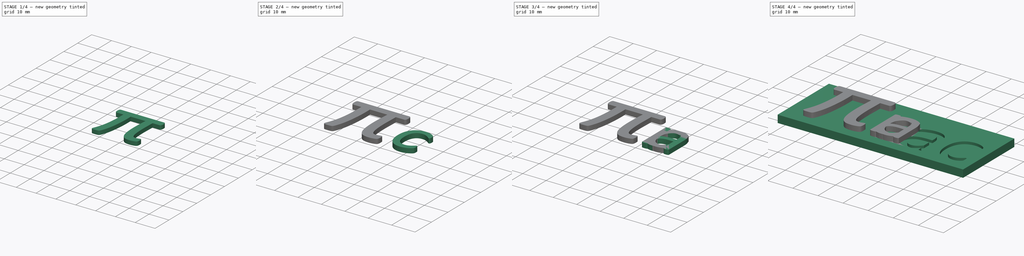
[diagram: build sequence overview — one tinted view per stage of 4, left to right]
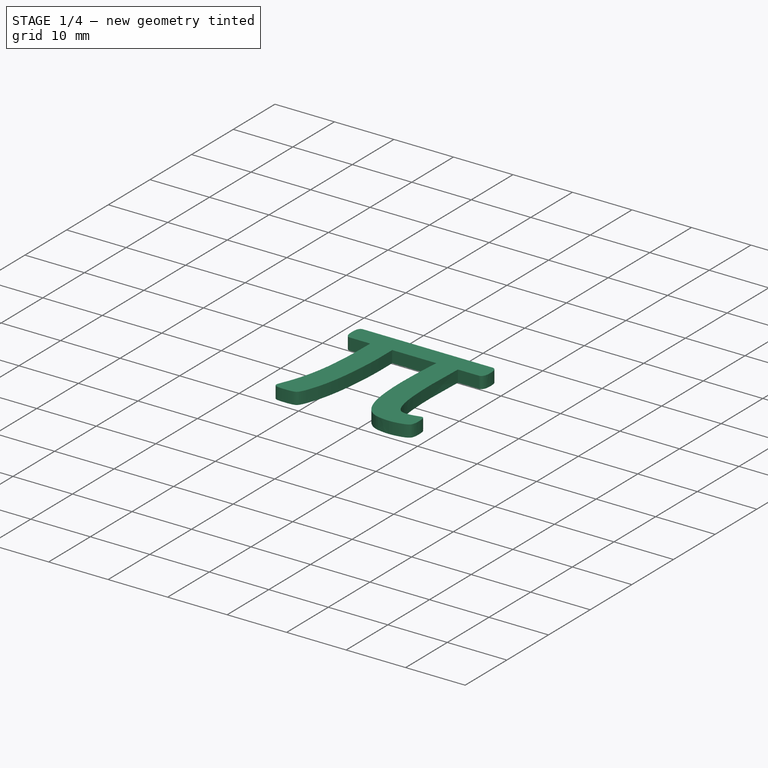
[diagram: stage 1 of 4 — iso view after this stage's code; geometry added in this stage tinted green]
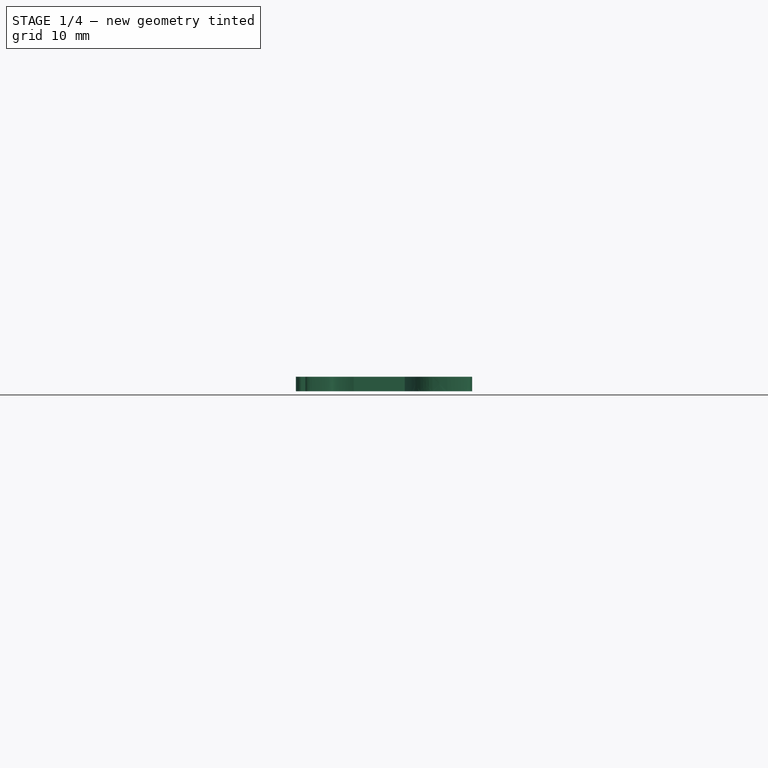
[diagram: stage 1 of 4 — front view after this stage's code; geometry added in this stage tinted green]
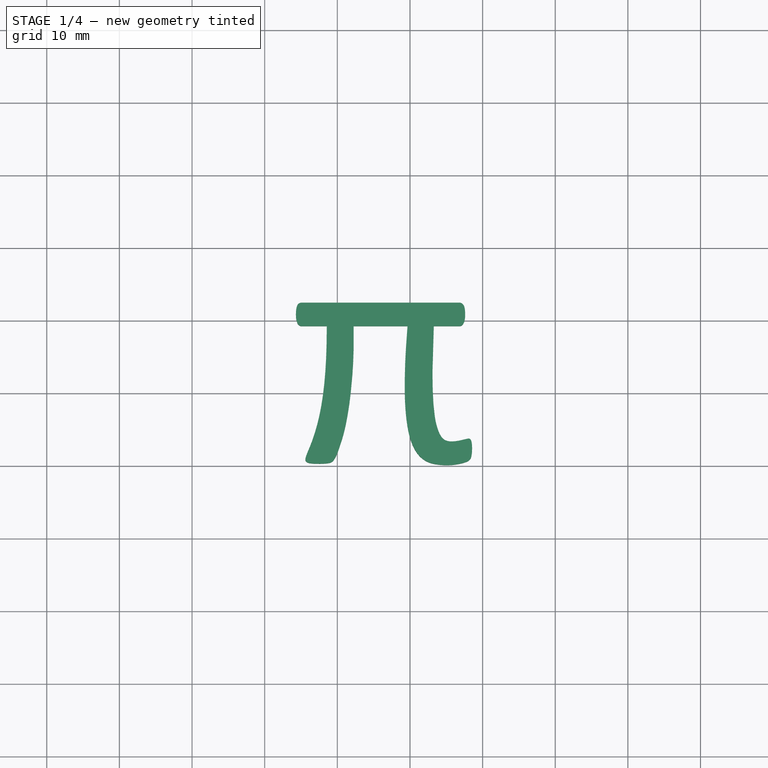
[diagram: stage 1 of 4 — top view after this stage's code; geometry added in this stage tinted green]
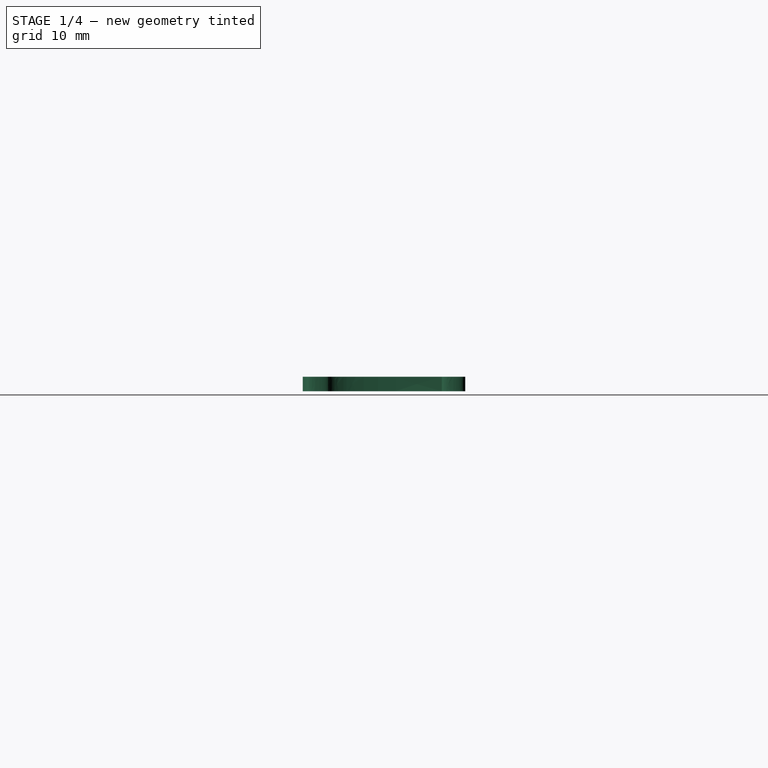
[diagram: stage 1 of 4 — right view after this stage's code; geometry added in this stage tinted green]
FCSTD DOCUMENT  (FreeCAD 1.0R39109 (Git))
Label: PiTrac Logo
License: All rights reserved
LicenseURL: http://en.wikipedia.org/wiki/All_rights_reserved
objects: Part::Part2DObjectPython×7, PartDesign::Pad×6, PartDesign::Body×6, PartDesign::Pocket×5, Sketcher::SketchObject×4, App::Part×2
note: 54 computed .brp shape members not serialized (recipe doc carries the construction recipe); baked Part::Feature solids carry a one-line shape summary decoded from their .brp

FEATURE [PartDesign::Body] Body  label="Logo - Back Plate Body"
  AllowCompound = false
  Group = -> [Sketch,Pad,ShapeString,ShapeString001,Pocket,Pocket001]
  Origin = -> Origin001
  Placement = pos=(0,28.3,0) rot=(0,0,1;0rad)
  Tip = -> Pocket001
FEATURE [App::Part] Part  label="Logo - Back Plate Object"
  Group = -> [Body]
  Origin = -> Origin
FEATURE [Part::Part2DObjectPython] ShapeString002  label="Pi Shape String"  # Draft 2D object (typed FeaturePython)
  FontFile = <path>
  Fuse = false
  Justification = 6
  JustificationReference = 0
  KeepLeftMargin = false
  MakeFace = true
  ObliqueAngle = 0
  Placement = pos=(-25.7,0.43,0) rot=(0,0,1;0rad)
  ScaleToSize = true
  Size = 30
  String = π
  Tracking = 0
FEATURE [PartDesign::Pad] Pad001  label="Pi Pad"
  Direction = (0,0,1)
  Length = 2
  Length2 = 10
  Placement = pos=(-25.7,0.43,0) rot=(0,0,1;0rad)
  Profile = -> ShapeString002
  ReferenceAxis = -> ShapeString002 [N_Axis]
  Suppressed = false
  Type = 0
FEATURE [PartDesign::Body] Body004  label="c Body"
  AllowCompound = false
  Group = -> [ShapeString005,Pad004]
  Origin = -> Origin005
  Placement = pos=(26.6,0,0) rot=(0,0,1;0rad)
  Tip = -> Pad004
FEATURE [Part::Part2DObjectPython] ShapeString006  label="Pi Shape String001"  # Draft 2D object (typed FeaturePython)
  FontFile = <path>
  Fuse = false
  Justification = 6
  JustificationReference = 0
  KeepLeftMargin = false
  MakeFace = true
  ObliqueAngle = 0
  Placement = pos=(-25.7,0.43,0) rot=(0,0,1;0rad)
  ScaleToSize = true
  Size = 30
  String = π
  Tracking = 0
FEATURE [PartDesign::Pad] Pad005  label="Pi Stem Pad"
  Direction = (0,0,1)
  Length = 2
  Length2 = 10
  Placement = pos=(-25.7,0.43,0) rot=(0,0,1;0rad)
  Profile = -> ShapeString006
  ReferenceAxis = -> ShapeString006 [N_Axis]
  Suppressed = false
  Type = 0
FEATURE [PartDesign::Body] Body005  label="Pi Stem Body"
  AllowCompound = false
  Group = -> [ShapeString006,Pad005,Sketch001,Pocket002,Sketch002,Pocket003]
  Origin = -> Origin006
  Placement = pos=(66.6,0,0) rot=(0,0,1;0rad)
  Tip = -> Pocket003
FEATURE [Sketcher::SketchObject] Sketch003
  ArcFitTolerance = 1e-06
  AttachmentSupport = -> [XY_Plane002]
  FullyConstrained = false
  MakeInternals = false
  MapMode = 5
  sketch-geometry (4):
    g0: LineSegment StartX=-26.0144 StartY=19.2461 StartZ=0 EndX=-26.0144 EndY=0 EndZ=0
    g1: LineSegment StartX=-26.0144 StartY=0 StartZ=0 EndX=-16.3567 EndY=0 EndZ=0
    g2: LineSegment StartX=-16.3567 StartY=0 StartZ=0 EndX=-16.3567 EndY=19.2461 EndZ=0
    g3: LineSegment StartX=-16.3567 StartY=19.2461 StartZ=0 EndX=-26.0144 EndY=19.2461 EndZ=0
  constraints (9):
    c: Coincident(g0,g1)
    c: Coincident(g1,g2)
    c: Coincident(g2,g3)
    c: Coincident(g3,g0)
    c: Vertical(g0)
    c: Vertical(g2)
    c: Horizontal(g1)
    c: Horizontal(g3)
    c: PointOnObject(g1,g-1)
FEATURE [PartDesign::Pocket] Pocket004  label="Stem Removal Pocket"
  BaseFeature = -> Pad001
  Direction = (0,0,-1)
  Length = 5
  Length2 = 5
  Placement = pos=(-25.7,0.43,0) rot=(0,0,1;0rad)
  Profile = -> Sketch003
  ReferenceAxis = -> Sketch003 [N_Axis]
  Reversed = true
  Suppressed = false
  Type = 0
FEATURE [PartDesign::Body] Body001  label="Pi Character"
  AllowCompound = false
  Group = -> [ShapeString002,Pad001,Sketch003,Pocket004]
  Origin = -> Origin002
  Tip = -> Pocket004
FEATURE [App::Part] Part001  label="Individual Characters Body"
  Group = -> [Body002,Body003,Body001,Body005,Body004]
  Origin = -> Origin007
note: 7 file-system paths scrubbed to <path> (originals preserved in the JSON sidecar)
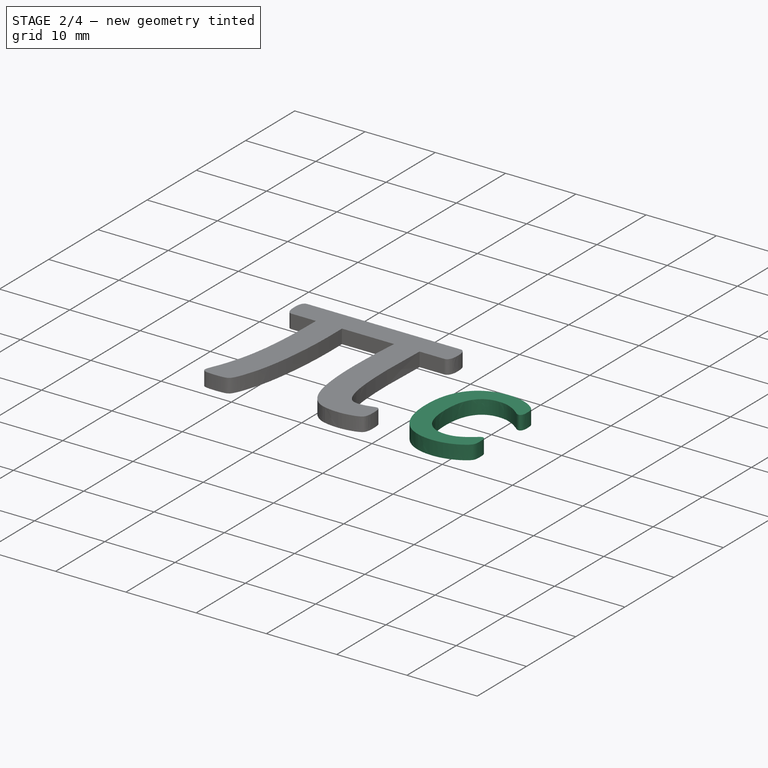
[diagram: stage 2 of 4 — iso view after this stage's code; geometry added in this stage tinted green]
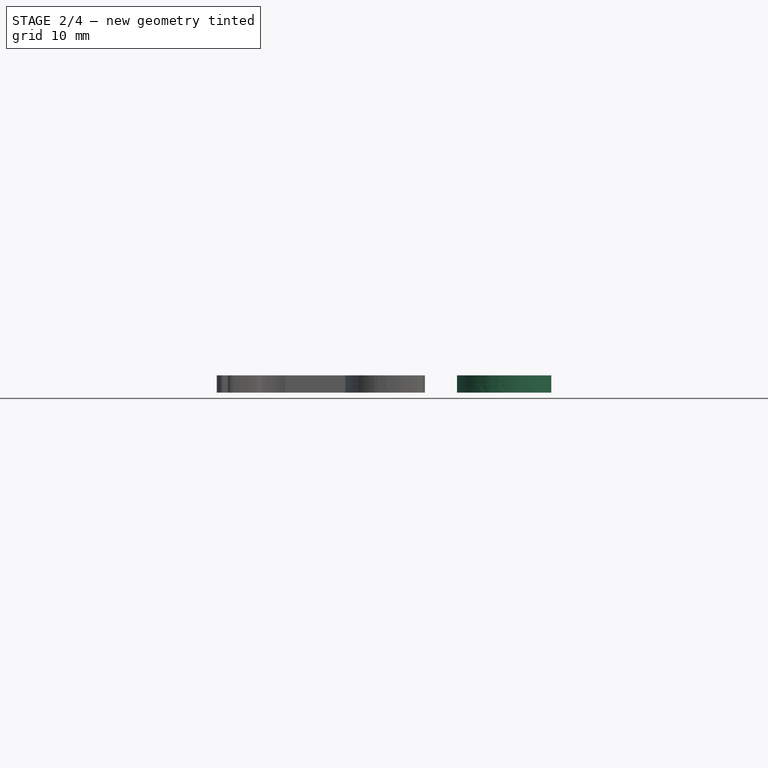
[diagram: stage 2 of 4 — front view after this stage's code; geometry added in this stage tinted green]
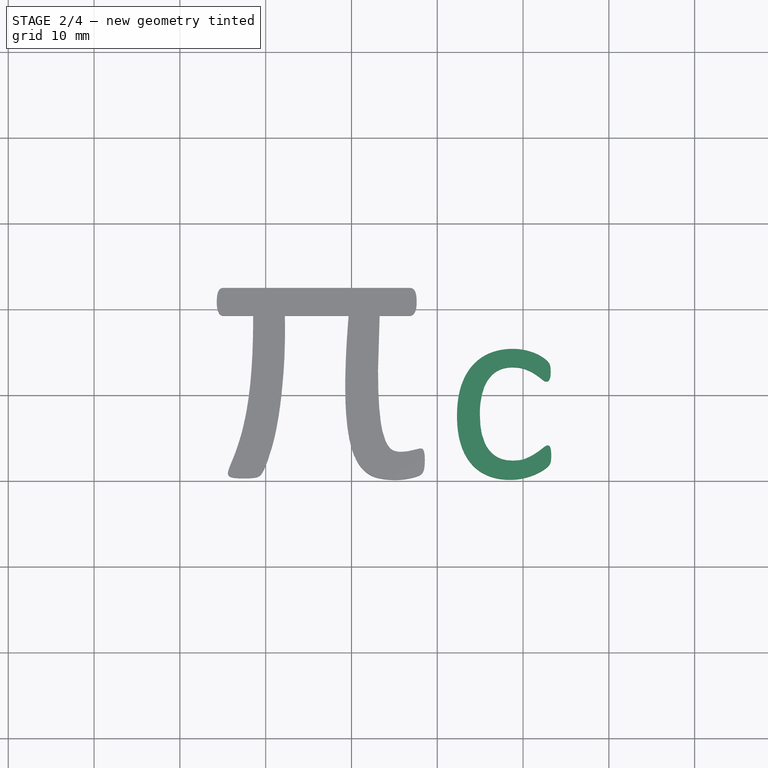
[diagram: stage 2 of 4 — top view after this stage's code; geometry added in this stage tinted green]
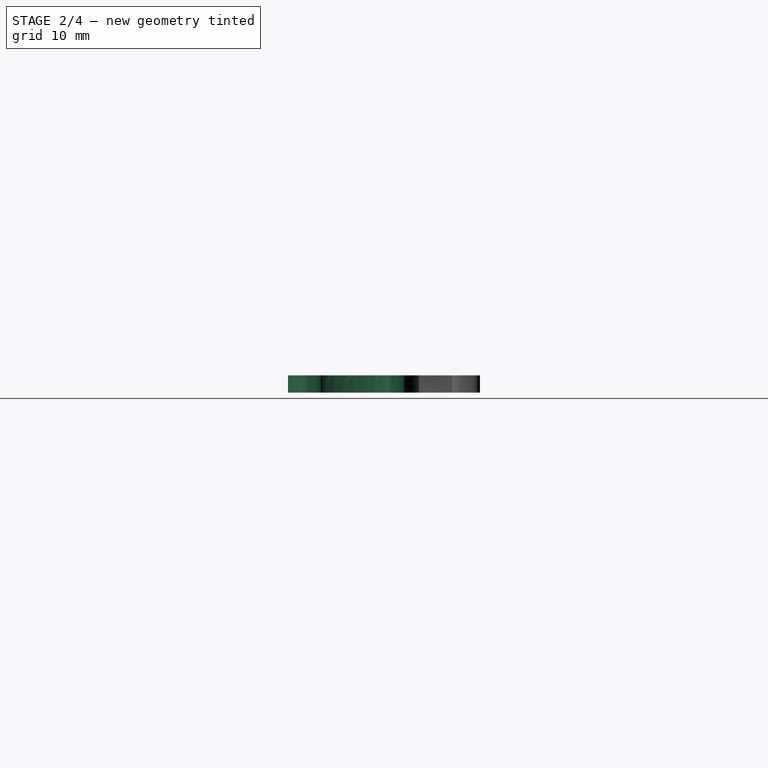
[diagram: stage 2 of 4 — right view after this stage's code; geometry added in this stage tinted green]
FEATURE [PartDesign::Body] Body003  label="a Character Body"
  AllowCompound = false
  Group = -> [ShapeString004,Pad003]
  Origin = -> Origin004
  Placement = pos=(11.1,0,0) rot=(0,0,1;0rad)
  Tip = -> Pad003
FEATURE [Part::Part2DObjectPython] ShapeString005  label="r Shape String002"  # Draft 2D object (typed FeaturePython)
  FontFile = <path>
  Fuse = false
  Justification = 6
  JustificationReference = 0
  KeepLeftMargin = false
  MakeFace = true
  ObliqueAngle = 0
  Placement = pos=(2.3,0.42,0) rot=(0,0,1;0rad)
  ScaleToSize = true
  Size = 20
  String = c
  Tracking = 0
FEATURE [PartDesign::Pad] Pad004  label="c Pad"
  Direction = (0,0,1)
  Length = 2
  Length2 = 10
  Placement = pos=(2.3,0.42,0) rot=(0,0,1;0rad)
  Profile = -> ShapeString005
  ReferenceAxis = -> ShapeString005 [N_Axis]
  Suppressed = false
  Type = 0
FEATURE [Sketcher::SketchObject] Sketch001
  ArcFitTolerance = 1e-06
  AttachmentSupport = -> [XY_Plane006]
  FullyConstrained = false
  MakeInternals = false
  MapMode = 5
  sketch-geometry (4):
    g0: LineSegment StartX=-17.7532 StartY=23.1232 StartZ=0 EndX=-17.7532 EndY=-0.613729 EndZ=0
    g1: LineSegment StartX=-17.7532 StartY=-0.613729 StartZ=0 EndX=-0.581133 EndY=-0.613729 EndZ=0
    g2: LineSegment StartX=-0.581133 StartY=-0.613729 StartZ=0 EndX=-0.581133 EndY=23.1232 EndZ=0
    g3: LineSegment StartX=-0.581133 StartY=23.1232 StartZ=0 EndX=-17.7532 EndY=23.1232 EndZ=0
  constraints (8):
    c: Coincident(g0,g1)
    c: Coincident(g1,g2)
    c: Coincident(g2,g3)
    c: Coincident(g3,g0)
    c: Vertical(g0)
    c: Vertical(g2)
    c: Horizontal(g1)
    c: Horizontal(g3)
FEATURE [PartDesign::Pocket] Pocket002  label="Pi Removal Pocket 1"
  BaseFeature = -> Pad005
  Direction = (0,0,-1)
  Length = 5
  Length2 = 5
  Placement = pos=(-25.7,0.43,0) rot=(0,0,1;0rad)
  Profile = -> Sketch001
  ReferenceAxis = -> Sketch001 [N_Axis]
  Reversed = true
  Suppressed = false
  Type = 0
FEATURE [Sketcher::SketchObject] Sketch002
  ArcFitTolerance = 1e-06
  AttachmentSupport = -> [XY_Plane006]
  FullyConstrained = false
  MakeInternals = false
  MapMode = 5
  sketch-geometry (4):
    g0: LineSegment StartX=-26.7532 StartY=19.2459 StartZ=0 EndX=-16.7093 EndY=19.2459 EndZ=0
    g1: LineSegment StartX=-16.7093 StartY=19.2459 StartZ=0 EndX=-16.7093 EndY=23.0557 EndZ=0
    g2: LineSegment StartX=-16.7093 StartY=23.0557 StartZ=0 EndX=-26.7532 EndY=23.0557 EndZ=0
    g3: LineSegment StartX=-26.7532 StartY=23.0557 StartZ=0 EndX=-26.7532 EndY=19.2459 EndZ=0
  constraints (8):
    c: Coincident(g0,g1)
    c: Coincident(g1,g2)
    c: Coincident(g2,g3)
    c: Coincident(g3,g0)
    c: Horizontal(g0)
    c: Horizontal(g2)
    c: Vertical(g1)
    c: Vertical(g3)
FEATURE [PartDesign::Pocket] Pocket003  label="Pi Removal Pocket 2"
  BaseFeature = -> Pocket002
  Direction = (0,0,-1)
  Length = 5
  Length2 = 5
  Placement = pos=(-25.7,0.43,0) rot=(0,0,1;0rad)
  Profile = -> Sketch002
  ReferenceAxis = -> Sketch002 [N_Axis]
  Reversed = true
  Suppressed = false
  Type = 0
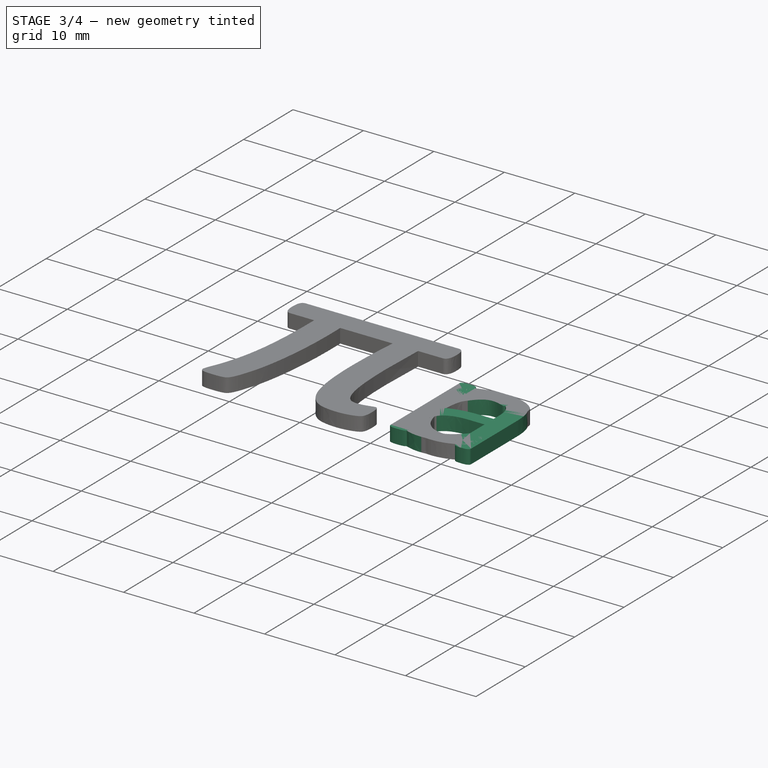
[diagram: stage 3 of 4 — iso view after this stage's code; geometry added in this stage tinted green]
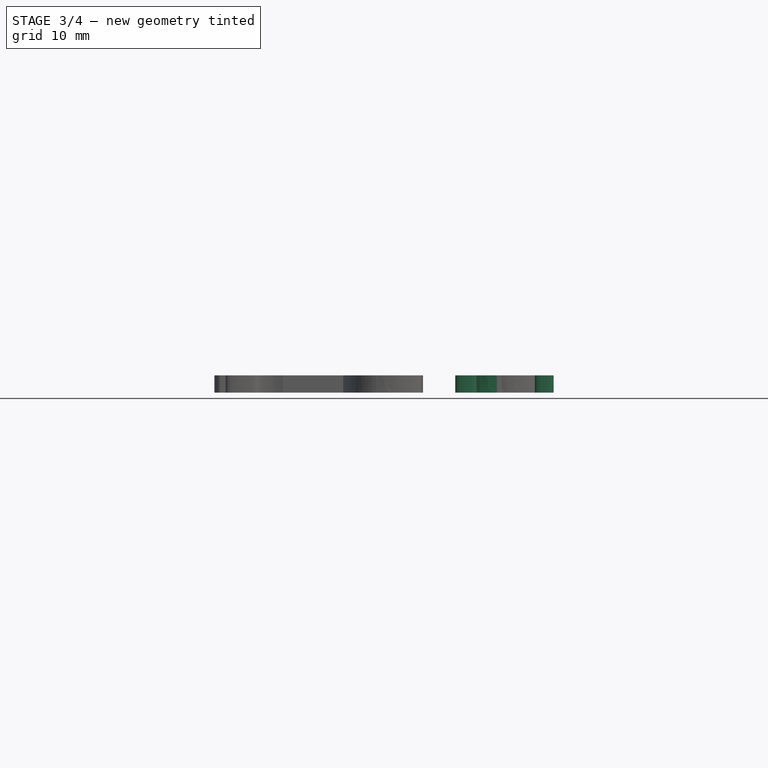
[diagram: stage 3 of 4 — front view after this stage's code; geometry added in this stage tinted green]
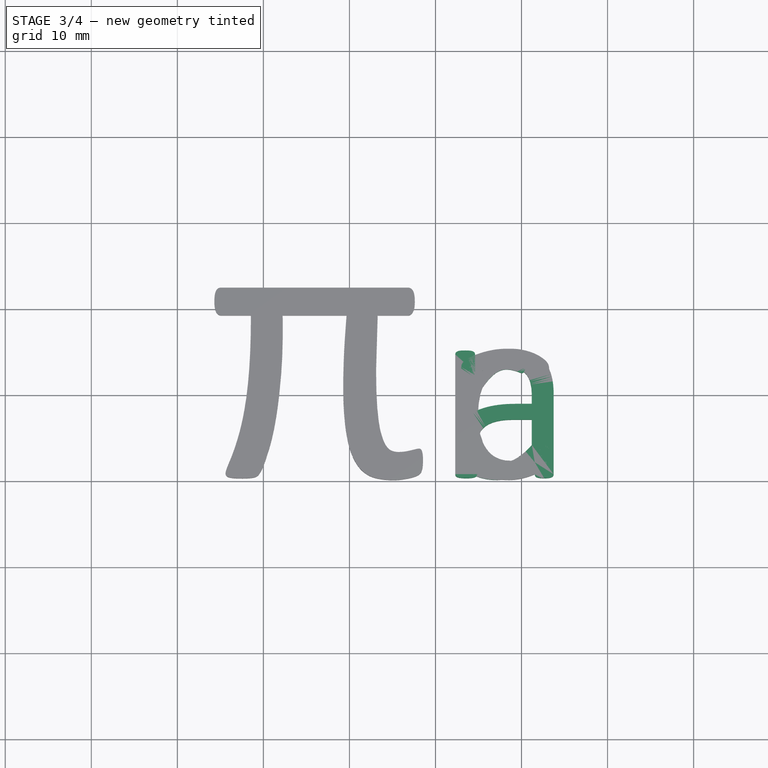
[diagram: stage 3 of 4 — top view after this stage's code; geometry added in this stage tinted green]
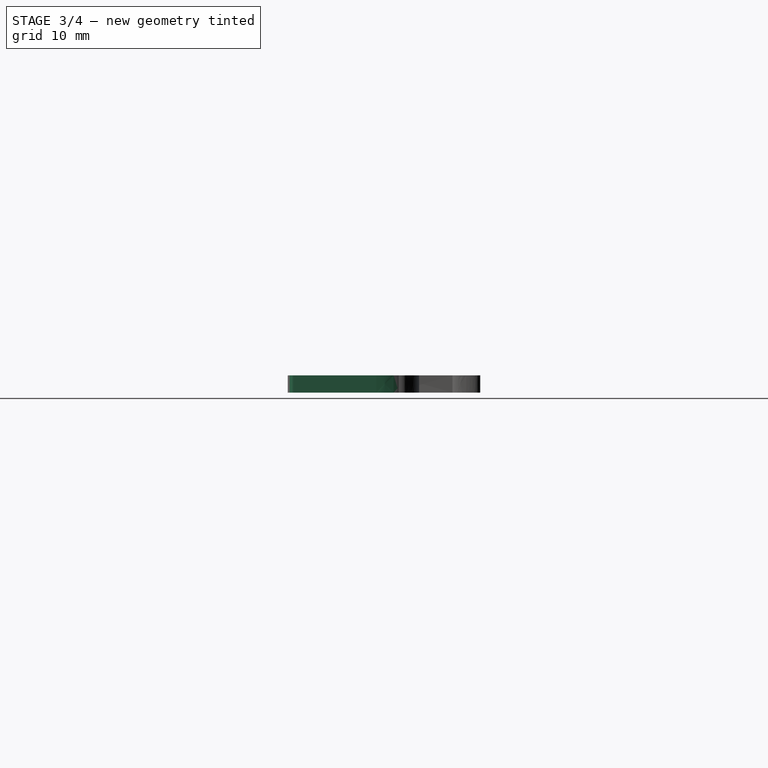
[diagram: stage 3 of 4 — right view after this stage's code; geometry added in this stage tinted green]
FEATURE [Part::Part2DObjectPython] ShapeString003  label="r Shape String"  # Draft 2D object (typed FeaturePython)
  FontFile = <path>
  Fuse = false
  Justification = 6
  JustificationReference = 0
  KeepLeftMargin = false
  MakeFace = true
  ObliqueAngle = 0
  Placement = pos=(2.3,0.42,0) rot=(0,0,1;0rad)
  ScaleToSize = true
  Size = 20
  String = r
  Tracking = 0
FEATURE [PartDesign::Pad] Pad002  label="r Pad"
  Direction = (0,0,1)
  Length = 2
  Length2 = 10
  Placement = pos=(2.3,0.42,0) rot=(0,0,1;0rad)
  Profile = -> ShapeString003
  ReferenceAxis = -> ShapeString003 [N_Axis]
  Suppressed = false
  Type = 0
FEATURE [PartDesign::Body] Body002  label="r Character"
  AllowCompound = false
  Group = -> [ShapeString003,Pad002]
  Origin = -> Origin003
  Tip = -> Pad002
FEATURE [Part::Part2DObjectPython] ShapeString004  label="r Shape String001"  # Draft 2D object (typed FeaturePython)
  FontFile = <path>
  Fuse = false
  Justification = 6
  JustificationReference = 0
  KeepLeftMargin = false
  MakeFace = true
  ObliqueAngle = 0
  Placement = pos=(2.3,0.42,0) rot=(0,0,1;0rad)
  ScaleToSize = true
  Size = 20
  String = a
  Tracking = 0
FEATURE [PartDesign::Pad] Pad003  label="a pad"
  Direction = (0,0,1)
  Length = 2
  Length2 = 10
  Placement = pos=(2.3,0.42,0) rot=(0,0,1;0rad)
  Profile = -> ShapeString004
  ReferenceAxis = -> ShapeString004 [N_Axis]
  Suppressed = false
  Type = 0
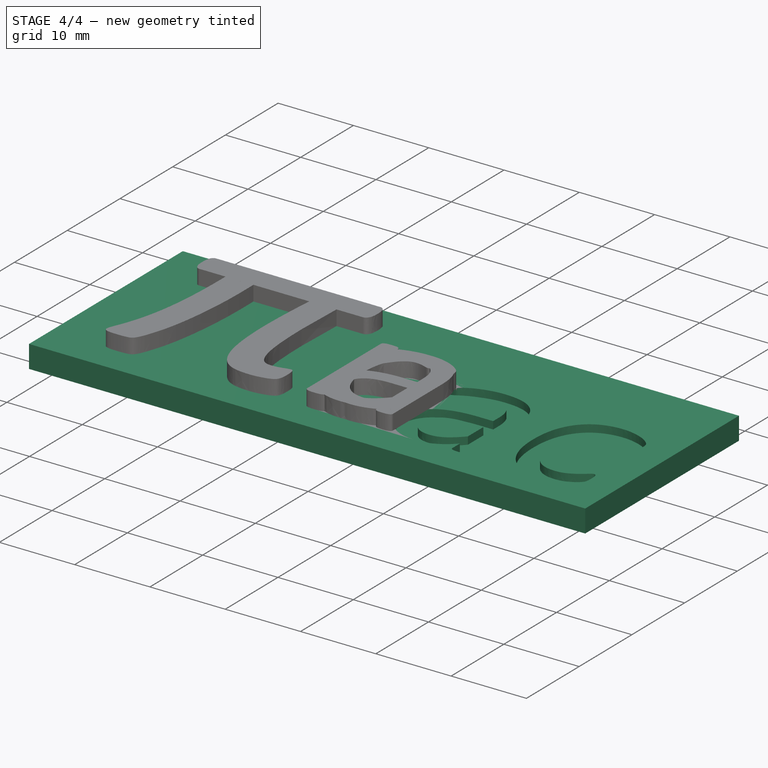
[diagram: stage 4 of 4 — iso view after this stage's code; geometry added in this stage tinted green]
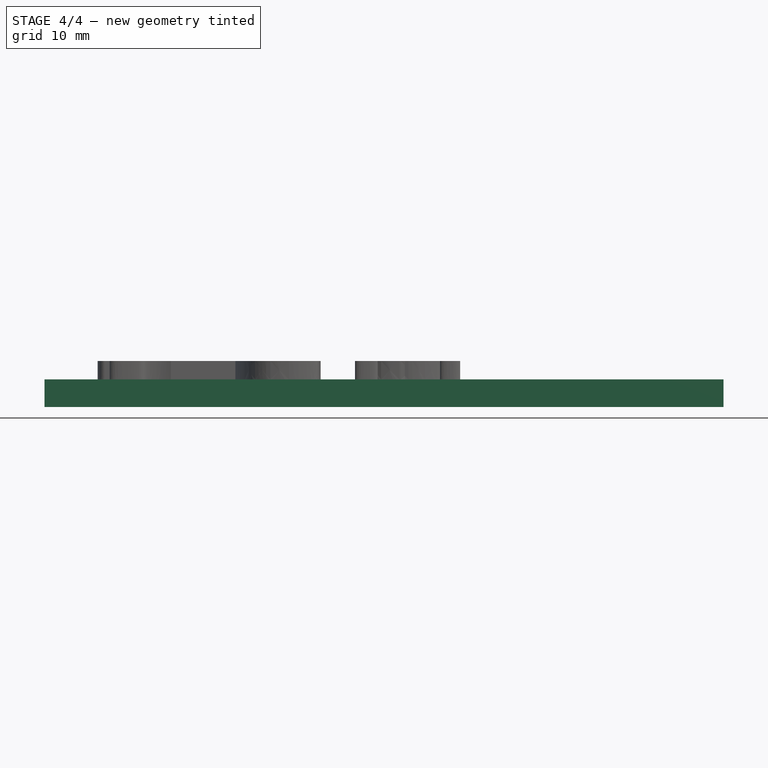
[diagram: stage 4 of 4 — front view after this stage's code; geometry added in this stage tinted green]
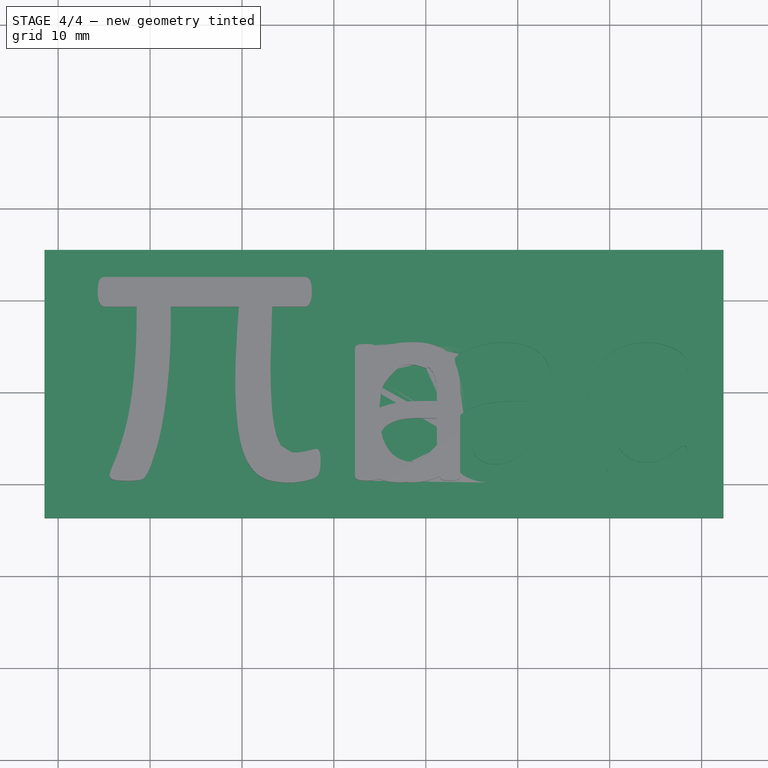
[diagram: stage 4 of 4 — top view after this stage's code; geometry added in this stage tinted green]
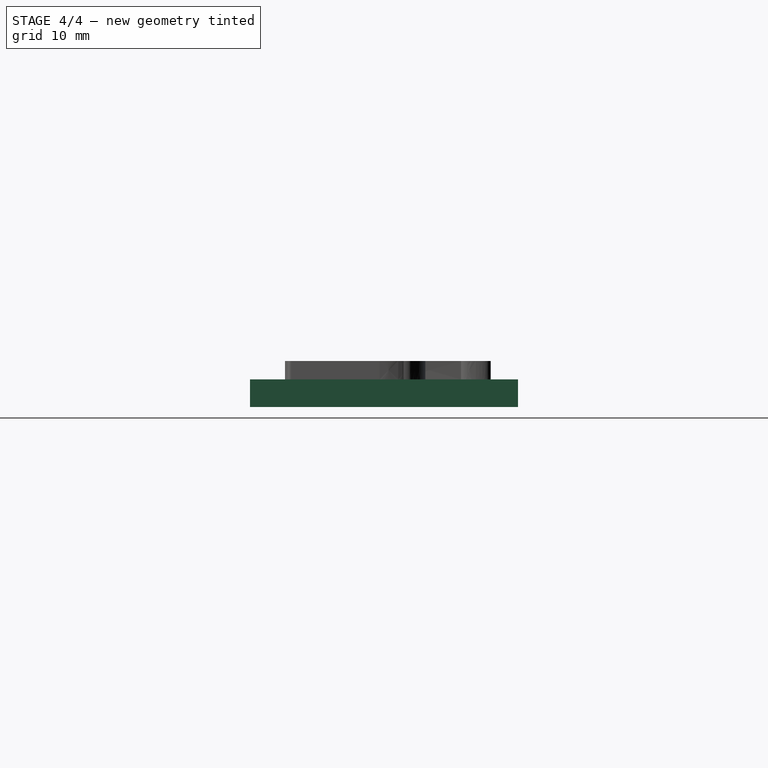
[diagram: stage 4 of 4 — right view after this stage's code; geometry added in this stage tinted green]
FEATURE [Part::Part2DObjectPython] ShapeString  # Draft 2D object (typed FeaturePython)
  FontFile = <path>
  Fuse = false
  Justification = 6
  JustificationReference = 0
  KeepLeftMargin = false
  MakeFace = true
  ObliqueAngle = 0
  Placement = pos=(-25.7,0.43,0) rot=(0,0,1;0rad)
  ScaleToSize = true
  Size = 30
  String = π
  Tracking = 0
FEATURE [Part::Part2DObjectPython] ShapeString001  # Draft 2D object (typed FeaturePython)
  FontFile = <path>
  Fuse = false
  Justification = 6
  JustificationReference = 0
  KeepLeftMargin = false
  MakeFace = true
  ObliqueAngle = 0
  Placement = pos=(2.3,0.42,0) rot=(0,0,1;0rad)
  ScaleToSize = true
  Size = 20
  String = rac
  Tracking = 0
FEATURE [Sketcher::SketchObject] Sketch
  ArcFitTolerance = 1e-06
  AttachmentSupport = -> [XY_Plane001]
  FullyConstrained = false
  MakeInternals = false
  MapMode = 5
  sketch-geometry (4):
    g0: LineSegment StartX=-31.4834 StartY=25.4794 StartZ=0 EndX=-31.4834 EndY=-3.68303 EndZ=0
    g1: LineSegment StartX=-31.4834 StartY=-3.68303 StartZ=0 EndX=42.3814 EndY=-3.68303 EndZ=0
    g2: LineSegment StartX=42.3814 StartY=-3.68303 StartZ=0 EndX=42.3814 EndY=25.4794 EndZ=0
    g3: LineSegment StartX=42.3814 StartY=25.4794 StartZ=0 EndX=-31.4834 EndY=25.4794 EndZ=0
  constraints (8):
    c: Coincident(g0,g1)
    c: Coincident(g1,g2)
    c: Coincident(g2,g3)
    c: Coincident(g3,g0)
    c: Vertical(g0)
    c: Vertical(g2)
    c: Horizontal(g1)
    c: Horizontal(g3)
FEATURE [PartDesign::Pad] Pad  label="PiTrac Pad"
  Direction = (0,0,1)
  Length = 3
  Length2 = 10
  Profile = -> Sketch
  ReferenceAxis = -> Sketch [N_Axis]
  Reversed = true
  Suppressed = false
  Type = 0
FEATURE [PartDesign::Pocket] Pocket  label="Pi Inset Pocket"
  BaseFeature = -> Pad
  Direction = (0,0,-1)
  Length = 1
  Length2 = 5
  Profile = -> ShapeString
  ReferenceAxis = -> ShapeString [N_Axis]
  Suppressed = false
  Type = 0
FEATURE [PartDesign::Pocket] Pocket001  label="rac Inset Pocket"
  BaseFeature = -> Pocket
  Direction = (0,0,-1)
  Length = 1
  Length2 = 5
  Profile = -> ShapeString001
  ReferenceAxis = -> ShapeString001 [N_Axis]
  Suppressed = false
  Type = 0
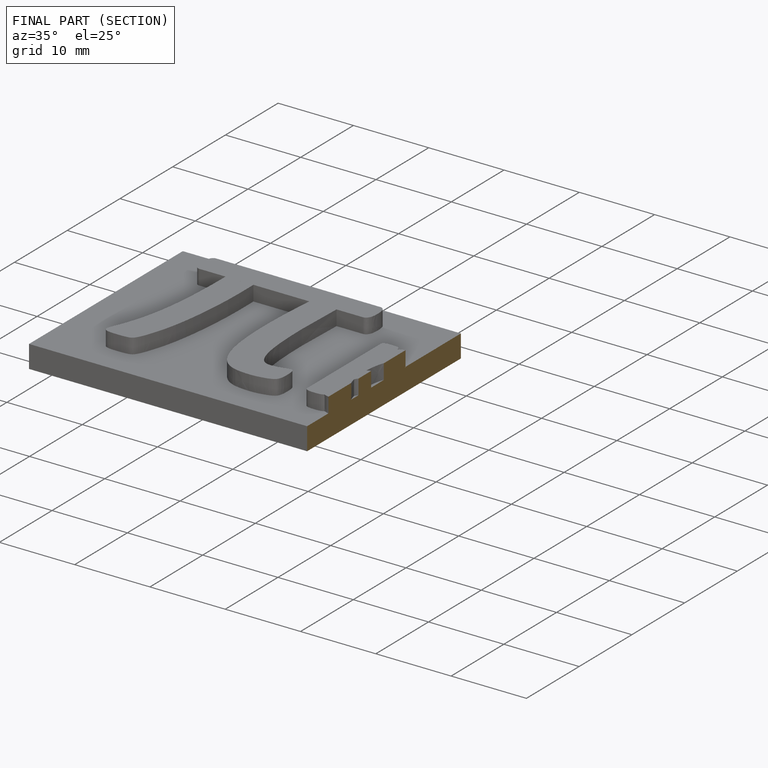
[diagram: finished part — half-section view (interior)]
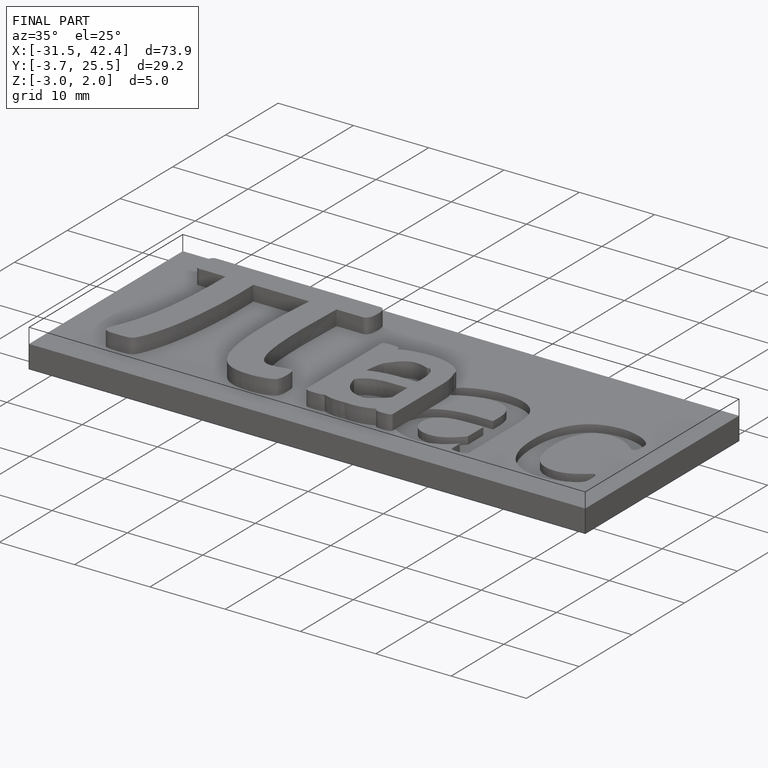
[diagram: finished part — iso view with bounding-box wireframe]
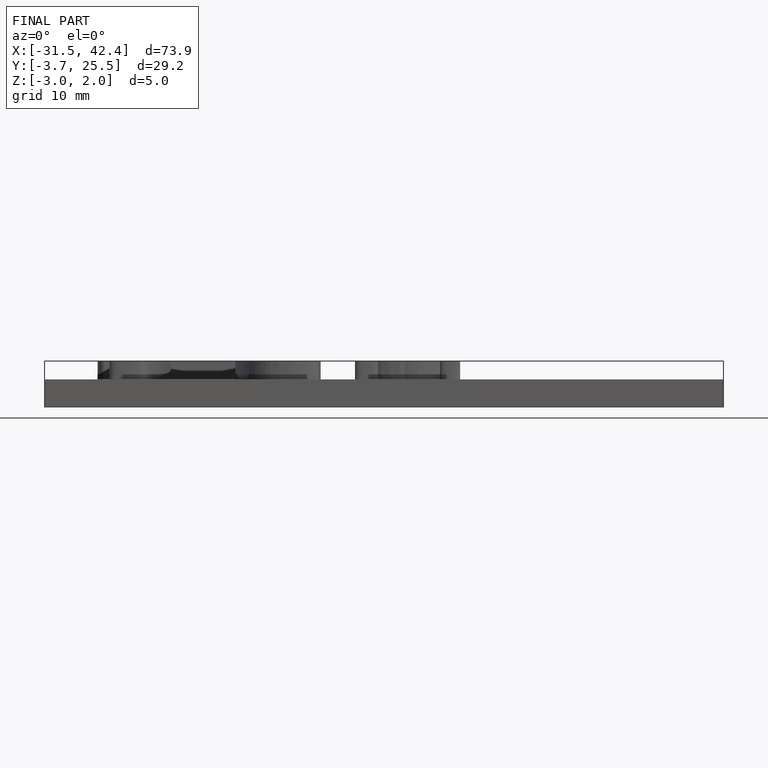
[diagram: finished part — front view with bounding-box wireframe]
